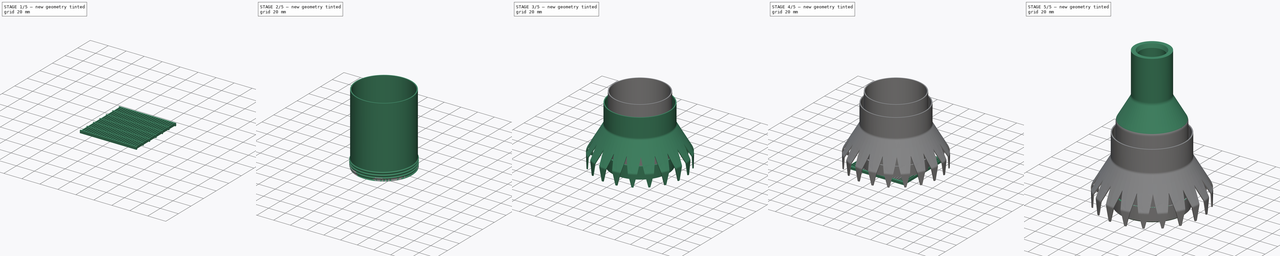
[diagram: build sequence overview — one tinted view per stage of 5, left to right]
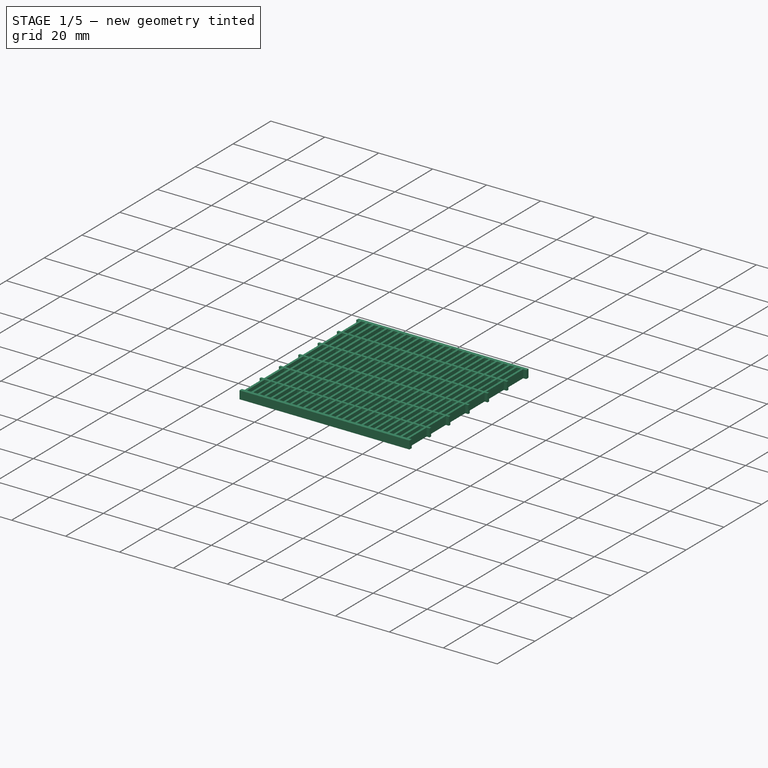
[diagram: stage 1 of 5 — iso view after this stage's code; geometry added in this stage tinted green]
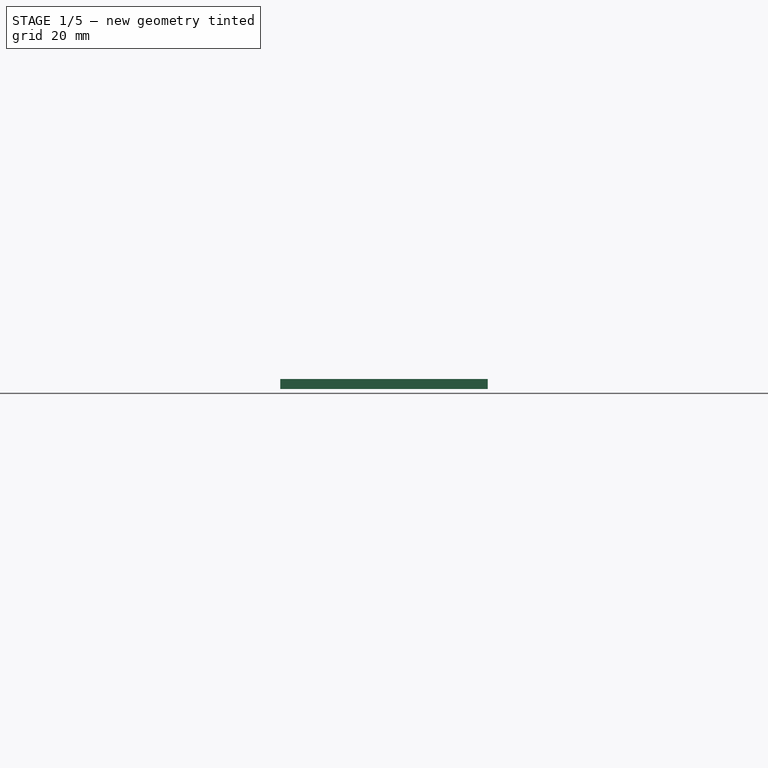
[diagram: stage 1 of 5 — front view after this stage's code; geometry added in this stage tinted green]
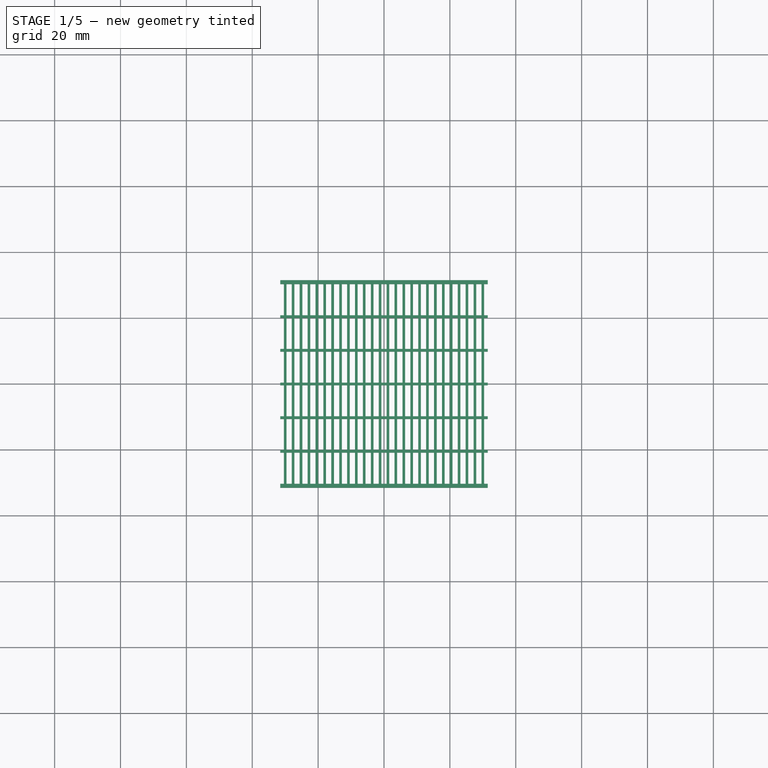
[diagram: stage 1 of 5 — top view after this stage's code; geometry added in this stage tinted green]
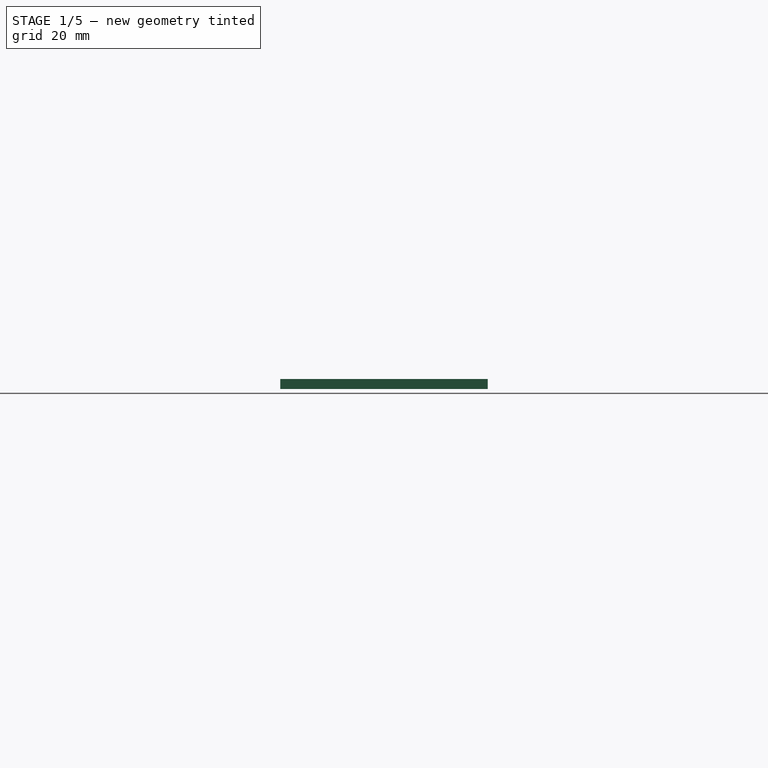
[diagram: stage 1 of 5 — right view after this stage's code; geometry added in this stage tinted green]
FCSTD DOCUMENT  (FreeCAD 1.0R39319 (Git))
Label: SilicaHeater
License: All rights reserved
LicenseURL: http://en.wikipedia.org/wiki/All_rights_reserved
objects: Sketcher::SketchObject×19, PartDesign::Pad×8, PartDesign::LinearPattern×8, PartDesign::Pocket×5, PartDesign::Body×5, PartDesign::Chamfer×4, PartDesign::Revolution×2, PartDesign::Fillet×2, Spreadsheet::Sheet×1, PartDesign::AdditiveHelix×1, PartDesign::SubtractiveHelix×1, Part::MultiFuse×1, PartDesign::SubtractiveLoft×1, PartDesign::PolarPattern×1
note: 134 computed .brp shape members not serialized (recipe doc carries the construction recipe); baked Part::Feature solids carry a one-line shape summary decoded from their .brp

FEATURE [Spreadsheet::Sheet] Spreadsheet
  cells = A1='Global; B2='Tolerance; C2(Tolerance)==0.15 mm; A4='Canister; B5='WallThickness; C5(WallThickness)==1.2 mm; B6='OuterDia; C6(OuterDia)==66.4 mm; D6==50 mm; B7='InnerDia; C7(InnerDia)==OuterDia - WallThickness * 2; B8='CanisterHeight; C8(CanisterHeight)==84 mm; D8==73 mm; A10='Grills; B11='G_Gap; C11(G_Gap)==1.6 mm; B12='G_Thickness; C12(G_Thickness)==0.8 mm; B13='G_Height; C13(G_Height)==3 mm; B14='G_Dividers; C14(G_Dividers)=2; D14=1; A16='Insert; B17='I_Tolerance; C17(I_Tolerance)==0.5 mm; B18='I_OuterDia; C18(I_OuterDia)==InnerDia - I_Tolerance * 2; B19='I_WallThickness; C19(I_WallThickness)==1.2 mm; B20='I_Height; C20(I_Height)==33 mm; A22='Heat Gun; B23='HG_Diameter; C23(HG_Diameter)==25 mm; B24='HG_Tolerance; C24(HG_Tolerance)==0.75 mm; B25='HG_Length; C25(HG_Length)==48 mm; B26='HG_WallThicness; C26(HG_WallThicness)==6 mm; B27='HG_InnerDia; C27(HG_InnerDia)==HG_Diameter + HG_Tolerance * 2; B28='HG_OuterDia; C28(HG_OuterDia)==HG_InnerDia + HG_WallThicness * 2; A30='Cap; B31='C_Height; C31(C_Height)==12 mm; B32='C_InnerDia; C32(C_InnerDia)==OuterDia + Tolerance * 2; B33='C_WallThickness; C33(C_WallThickness)==2.6 mm; B34='C_OuterDia; C34(C_OuterDia)==C_InnerDia + C_WallThickness * 2
FEATURE [Sketcher::SketchObject] Sketch034
  ArcFitTolerance = 1e-06
  AttachmentSupport = -> [XY_Plane]
  FullyConstrained = true
  MakeInternals = false
  MapMode = 5
  expr: Constraints[10] = <<Spreadsheet>>.I_OuterDia
  sketch-geometry (4):
    g0: LineSegment StartX=-31.5 StartY=31.5 StartZ=0 EndX=-31.5 EndY=-31.5 EndZ=0
    g1: LineSegment StartX=-31.5 StartY=-31.5 StartZ=0 EndX=31.5 EndY=-31.5 EndZ=0
    g2: LineSegment StartX=31.5 StartY=-31.5 StartZ=0 EndX=31.5 EndY=31.5 EndZ=0
    g3: LineSegment StartX=31.5 StartY=31.5 StartZ=0 EndX=-31.5 EndY=31.5 EndZ=0
  constraints (11):
    c: Coincident(g0,g1)
    c: Coincident(g1,g2)
    c: Coincident(g2,g3)
    c: Coincident(g3,g0)
    c: Vertical(g0)
    c: Vertical(g2)
    c: Horizontal(g1)
    c: Horizontal(g3)
    c: Symmetric(g0,g1,g-1)
    c: Equal(g3,g0)
    c: DistanceX(g3,g3) = 63
FEATURE [PartDesign::Pad] Pad008
  Direction = (0,0,1)
  Length = 3
  Length2 = 10
  Profile = -> Sketch034
  ReferenceAxis = -> Sketch034 [N_Axis]
  Refine = true
  Suppressed = false
  Type = 0
  expr: Length = <<Spreadsheet>>.G_Height
FEATURE [Sketcher::SketchObject] Sketch035
  ArcFitTolerance = 1e-06
  AttachmentSupport = -> [XY_Plane]
  FullyConstrained = true
  MakeInternals = false
  MapMode = 5
  expr: Constraints[10] = <<Spreadsheet>>.G_Gap
  expr: Constraints[9] = <<Spreadsheet>>.I_OuterDia - <<Spreadsheet>>.I_WallThickness * 2
  sketch-geometry (4):
    g0: LineSegment StartX=-0.8 StartY=30.3 StartZ=0 EndX=-0.8 EndY=-30.3 EndZ=0
    g1: LineSegment StartX=-0.8 StartY=-30.3 StartZ=0 EndX=0.8 EndY=-30.3 EndZ=0
    g2: LineSegment StartX=0.8 StartY=-30.3 StartZ=0 EndX=0.8 EndY=30.3 EndZ=0
    g3: LineSegment StartX=0.8 StartY=30.3 StartZ=0 EndX=-0.8 EndY=30.3 EndZ=0
  constraints (11):
    c: Coincident(g0,g1)
    c: Coincident(g1,g2)
    c: Coincident(g2,g3)
    c: Coincident(g3,g0)
    c: Vertical(g0)
    c: Vertical(g2)
    c: Horizontal(g1)
    c: Horizontal(g3)
    c: Symmetric(g1,g0,g-1)
    c: DistanceY(g0,g0) = 60.6
    c: DistanceX(g3,g3) = 1.6
FEATURE [PartDesign::Pocket] Pocket002
  BaseFeature = -> Pad008
  Direction = (0,0,-1)
  Length = 5
  Length2 = 5
  Profile = -> Sketch035
  ReferenceAxis = -> Sketch035 [N_Axis]
  Refine = true
  Reversed = true
  Suppressed = false
  Type = 1
FEATURE [PartDesign::LinearPattern] LinearPattern
  BaseFeature = -> Pocket002
  Direction = -> Sketch035 [H_Axis]
  Length = 31.2
  Mode = 1
  Occurrences = 14
  Offset = 2.4
  Originals = -> [Pocket002]
  Refine = true
  Suppressed = false
  TransformMode = 0
  expr: Occurrences = <<Spreadsheet>>.I_OuterDia / 2 / Offset + 1
  expr: Offset = <<Spreadsheet>>.G_Gap + <<Spreadsheet>>.G_Thickness
FEATURE [PartDesign::LinearPattern] LinearPattern001
  BaseFeature = -> LinearPattern
  Direction = -> Sketch035 [H_Axis]
  Length = 31.2
  Mode = 1
  Occurrences = 14
  Offset = 2.4
  Originals = -> [Pocket002]
  Refine = true
  Reversed = true
  Suppressed = false
  TransformMode = 0
  expr: Occurrences = <<Spreadsheet>>.I_OuterDia / 2 / Offset + 1
  expr: Offset = <<Spreadsheet>>.G_Gap + <<Spreadsheet>>.G_Thickness
FEATURE [Sketcher::SketchObject] Sketch036
  ArcFitTolerance = 1e-06
  AttachmentSupport = -> [XY_Plane]
  FullyConstrained = true
  MakeInternals = false
  MapMode = 5
  expr: Constraints[10] = <<Spreadsheet>>.I_OuterDia
  expr: Constraints[9] = <<Spreadsheet>>.G_Thickness
  sketch-geometry (4):
    g0: LineSegment StartX=-31.5 StartY=0.4 StartZ=0 EndX=-31.5 EndY=-0.4 EndZ=0
    g1: LineSegment StartX=-31.5 StartY=-0.4 StartZ=0 EndX=31.5 EndY=-0.4 EndZ=0
    g2: LineSegment StartX=31.5 StartY=-0.4 StartZ=0 EndX=31.5 EndY=0.4 EndZ=0
    g3: LineSegment StartX=31.5 StartY=0.4 StartZ=0 EndX=-31.5 EndY=0.4 EndZ=0
  constraints (11):
    c: Coincident(g0,g1)
    c: Coincident(g1,g2)
    c: Coincident(g2,g3)
    c: Coincident(g3,g0)
    c: Vertical(g0)
    c: Vertical(g2)
    c: Horizontal(g1)
    c: Horizontal(g3)
    c: Symmetric(g0,g2,g-1)
    c: DistanceY(g0,g0) = 0.8
    c: DistanceX(g3,g3) = 63
FEATURE [PartDesign::Pad] Pad009
  BaseFeature = -> LinearPattern001
  Direction = (0,0,1)
  Length = 3
  Length2 = 10
  Profile = -> Sketch036
  ReferenceAxis = -> Sketch036 [N_Axis]
  Refine = true
  Suppressed = false
  Type = 0
  expr: Length = <<Pad008>>.Length
FEATURE [PartDesign::LinearPattern] LinearPattern002
  BaseFeature = -> Pad009
  Direction = -> Sketch036 [V_Axis]
  Length = 20.4667
  Mode = 1
  Occurrences = 3
  Offset = 10.2333
  Originals = -> [Pad009]
  Refine = true
  Suppressed = false
  TransformMode = 0
  expr: Occurrences = <<Spreadsheet>>.G_Dividers + 1
  expr: Offset = (<<Spreadsheet>>.I_OuterDia - <<Spreadsheet>>.I_WallThickness - <<Spreadsheet>>.G_Thickness / 2) / 2 / (<<Spreadsheet>>.G_Dividers + 1)
FEATURE [PartDesign::LinearPattern] LinearPattern003
  BaseFeature = -> LinearPattern002
  Direction = -> Sketch036 [V_Axis]
  Length = 20.4667
  Mode = 1
  Occurrences = 3
  Offset = 10.2333
  Originals = -> [Pad009]
  Refine = true
  Reversed = true
  Suppressed = false
  TransformMode = 0
  expr: Occurrences = <<Spreadsheet>>.G_Dividers + 1
  expr: Offset = (<<Spreadsheet>>.I_OuterDia - <<Spreadsheet>>.I_WallThickness - <<Spreadsheet>>.G_Thickness / 2) / 2 / (<<Spreadsheet>>.G_Dividers + 1)
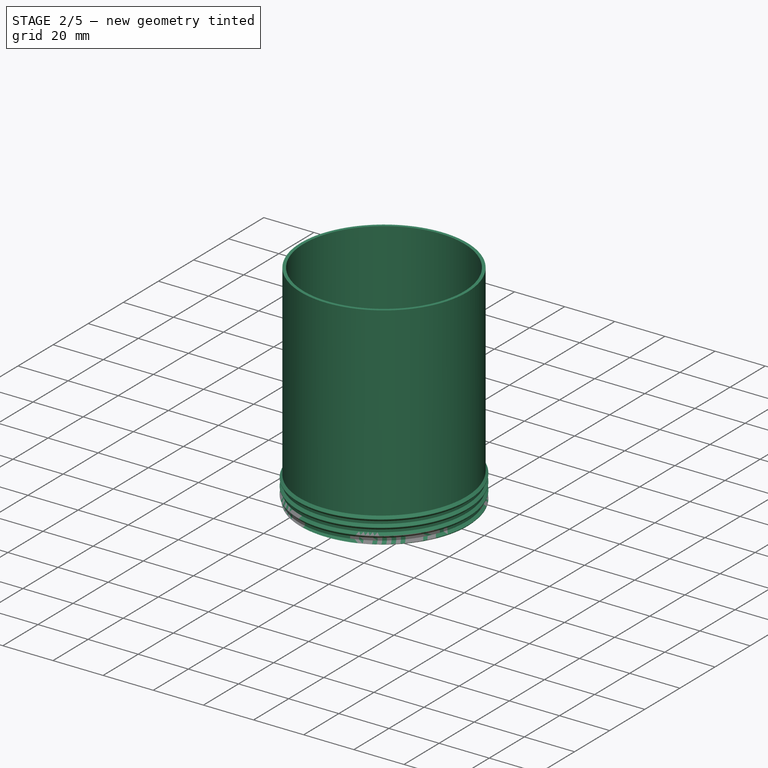
[diagram: stage 2 of 5 — iso view after this stage's code; geometry added in this stage tinted green]
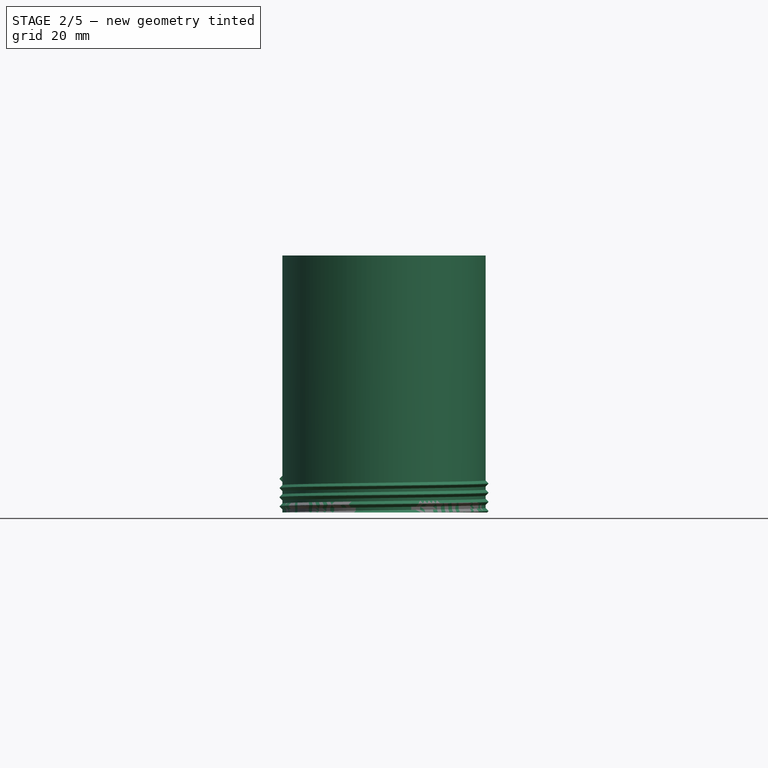
[diagram: stage 2 of 5 — front view after this stage's code; geometry added in this stage tinted green]
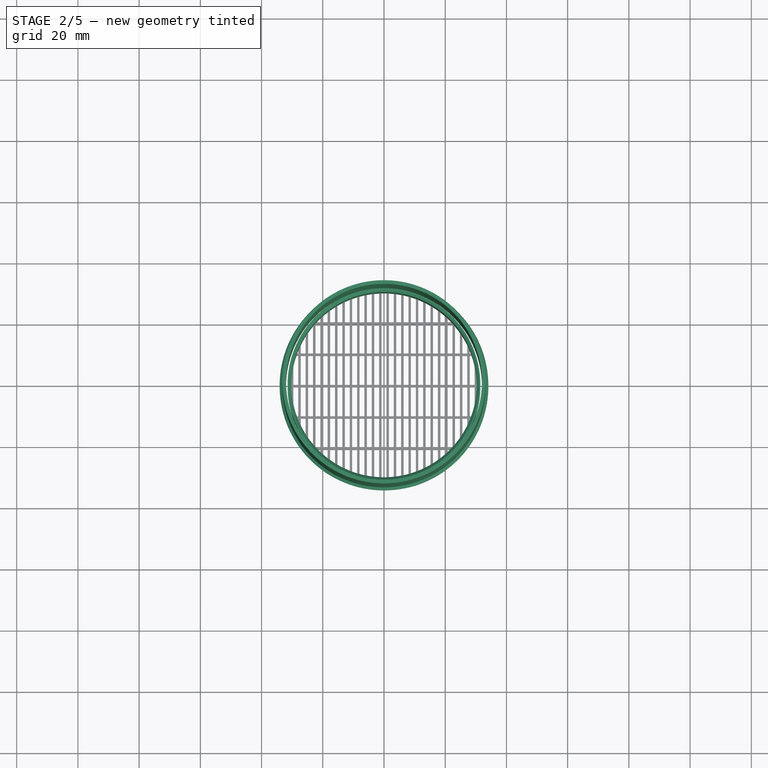
[diagram: stage 2 of 5 — top view after this stage's code; geometry added in this stage tinted green]
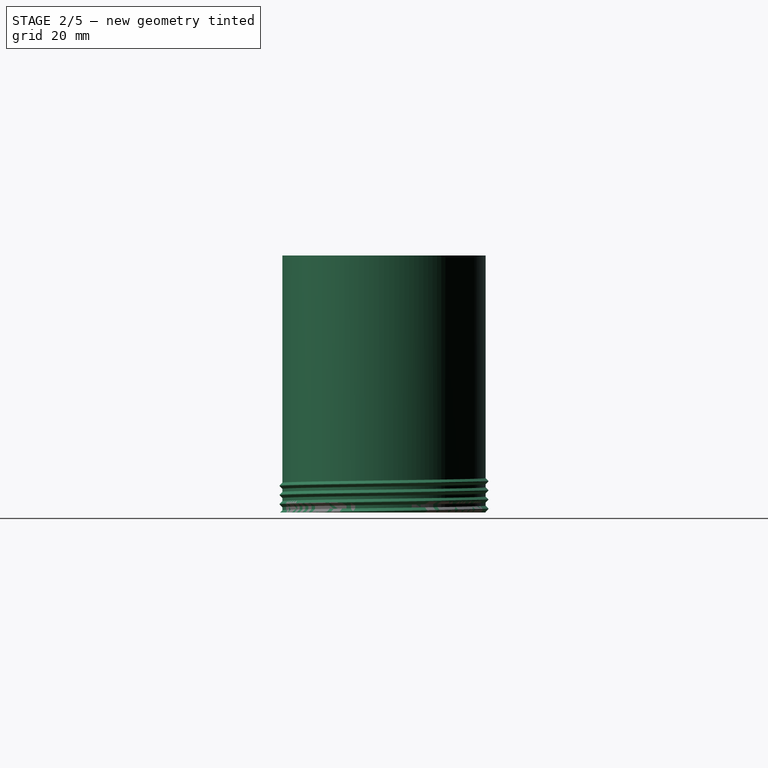
[diagram: stage 2 of 5 — right view after this stage's code; geometry added in this stage tinted green]
FEATURE [Sketcher::SketchObject] Sketch037
  ArcFitTolerance = 1e-06
  AttachmentSupport = -> [XY_Plane]
  FullyConstrained = true
  MakeInternals = false
  MapMode = 5
  expr: Constraints[11] = <<Spreadsheet>>.I_OuterDia
  expr: Constraints[9] = <<Spreadsheet>>.I_OuterDia + 1 mm
  sketch-geometry (5):
    g0: LineSegment StartX=-32 StartY=32 StartZ=0 EndX=-32 EndY=-32 EndZ=0
    g1: LineSegment StartX=-32 StartY=-32 StartZ=0 EndX=32 EndY=-32 EndZ=0
    g2: LineSegment StartX=32 StartY=-32 StartZ=0 EndX=32 EndY=32 EndZ=0
    g3: LineSegment StartX=32 StartY=32 StartZ=0 EndX=-32 EndY=32 EndZ=0
    g4: Circle CenterX=0 CenterY=0 CenterZ=0 NormalX=0 NormalY=0 NormalZ=1 AngleXU=0 Radius=31.5
  constraints (13):
    c: Coincident(g0,g1)
    c: Coincident(g1,g2)
    c: Coincident(g2,g3)
    c: Coincident(g3,g0)
    c: Vertical(g0)
    c: Vertical(g2)
    c: Horizontal(g1)
    c: Horizontal(g3)
    c: Equal(g3,g0)
    c: DistanceX(g3,g3) = 64
    c: Symmetric(g0,g2,g-1)
    c: Diameter(g4) = 63
    c: Coincident(g4,g-1)
FEATURE [PartDesign::Pocket] Pocket003
  BaseFeature = -> LinearPattern003
  Direction = (0,0,-1)
  Length = 5
  Length2 = 5
  Profile = -> Sketch037
  ReferenceAxis = -> Sketch037 [N_Axis]
  Refine = true
  Reversed = true
  Suppressed = false
  Type = 1
FEATURE [Sketcher::SketchObject] Sketch038
  ArcFitTolerance = 1e-06
  AttachmentSupport = -> [XY_Plane]
  FullyConstrained = true
  MakeInternals = false
  MapMode = 5
  expr: Constraints[1] = <<Spreadsheet>>.I_OuterDia
  expr: Constraints[2] = <<Spreadsheet>>.I_OuterDia - <<Spreadsheet>>.I_WallThickness * 2
  sketch-geometry (2):
    g0: Circle CenterX=0 CenterY=0 CenterZ=0 NormalX=0 NormalY=0 NormalZ=1 AngleXU=0 Radius=31.5
    g1: Circle CenterX=0 CenterY=0 CenterZ=0 NormalX=0 NormalY=0 NormalZ=1 AngleXU=0 Radius=30.3
  constraints (4):
    c: Coincident(g1,g0)
    c: Diameter(g0) = 63
    c: Diameter(g1) = 60.6
    c: Coincident(g0,g-1)
FEATURE [PartDesign::Pad] Pad010
  BaseFeature = -> Pocket003
  Direction = (0,0,1)
  Length = 33
  Length2 = 10
  Profile = -> Sketch038
  ReferenceAxis = -> Sketch038 [N_Axis]
  Refine = true
  Suppressed = false
  Type = 0
  expr: Length = <<Spreadsheet>>.I_Height
FEATURE [PartDesign::Chamfer] Chamfer005
  Angle = 45
  Base = -> Pad010 [Edge232]
  BaseFeature = -> Pad010
  ChamferType = 0
  FlipDirection = false
  Refine = true
  Size = 0.8
  Size2 = 1
  SupportTransform = false
  Suppressed = false
  UseAllEdges = false
  expr: Size = <<Spreadsheet>>.I_WallThickness - 0.4 mm
FEATURE [Sketcher::SketchObject] Sketch041
  ArcFitTolerance = 1e-06
  AttachmentSupport = -> [XY_Plane011]
  FullyConstrained = true
  MakeInternals = false
  MapMode = 5
  expr: Constraints[2] = <<Spreadsheet>>.InnerDia
  expr: Constraints[3] = Spreadsheet.OuterDia
  sketch-geometry (2):
    g0: Circle CenterX=0 CenterY=0 CenterZ=0 NormalX=0 NormalY=0 NormalZ=1 AngleXU=0 Radius=33.2
    g1: Circle CenterX=0 CenterY=0 CenterZ=0 NormalX=0 NormalY=0 NormalZ=1 AngleXU=0 Radius=32
  constraints (4):
    c: Coincident(g0,g-1)
    c: Coincident(g1,g0)
    c: Diameter(g1) = 64
    c: Diameter(g0) = 66.4
FEATURE [PartDesign::Pad] Pad011
  Direction = (0,0,1)
  Length = 84
  Length2 = 10
  Profile = -> Sketch041
  ReferenceAxis = -> Sketch041 [N_Axis]
  Refine = true
  Suppressed = false
  Type = 0
  expr: Length = <<Spreadsheet>>.CanisterHeight
FEATURE [Sketcher::SketchObject] Sketch042
  ArcFitTolerance = 1e-06
  AttachmentSupport = -> [XZ_Plane011]
  FullyConstrained = true
  MakeInternals = false
  MapMode = 5
  Placement = pos=(0,0,0) rot=(1,0,0;1.5708rad)
  expr: Constraints[10] = <<Spreadsheet>>.WallThickness
  expr: Constraints[13] = <<Spreadsheet>>.InnerDia / 2
  expr: Constraints[15] = <<Pad011>>.Length
  expr: Constraints[24] = <<Spreadsheet>>.HG_Length
  expr: Constraints[28] = <<Spreadsheet>>.HG_InnerDia / 2
  expr: Constraints[29] = <<Spreadsheet>>.HG_WallThicness
  sketch-geometry (10):
    g0: LineSegment StartX=-33.2 StartY=84 StartZ=0 EndX=-32 EndY=84 EndZ=0
    g1: LineSegment StartX=-33.2 StartY=84 StartZ=0 EndX=-19.25 EndY=108.162 EndZ=0
    g2: LineSegment StartX=-19.25 StartY=108.162 StartZ=0 EndX=-19.25 EndY=153.948 EndZ=0
    g3: LineSegment StartX=-19.25 StartY=153.948 StartZ=0 EndX=-13.25 EndY=153.948 EndZ=0
    g4: LineSegment StartX=-13.25 StartY=153.948 StartZ=0 EndX=-13.25 EndY=105.948 EndZ=0
    g5: LineSegment StartX=-13.25 StartY=105.948 StartZ=0 EndX=-32 EndY=84 EndZ=0
    g6: LineSegment [constr] StartX=-32 StartY=84 StartZ=0 EndX=0 EndY=84 EndZ=0
    g7: LineSegment [constr] StartX=-19.25 StartY=108.162 StartZ=0 EndX=-13.25 EndY=108.162 EndZ=0
    g8: LineSegment [constr] StartX=-19.25 StartY=108.162 StartZ=0 EndX=-14.688 EndY=104.265 EndZ=0
    g9: LineSegment [constr] StartX=-13.25 StartY=153.948 StartZ=0 EndX=0 EndY=153.948 EndZ=0
  constraints (30):
    c: Horizontal(g0)
    c: Coincident(g0,g1)
    c: Coincident(g1,g2)
    c: Vertical(g2)
    c: Coincident(g2,g3)
    c: Horizontal(g3)
    c: Coincident(g3,g4)
    c: Vertical(g4)
    c: Coincident(g4,g5)
    c: Coincident(g5,g0)
    c: DistanceX(g0,g0) = 1.2
    c: Coincident(g6,g0)
    c: Horizontal(g6)
    c: DistanceX(g6,g6) = 32
    c: PointOnObject(g6,g-2)
    c: DistanceY(g-1,g6) = 84
    c: Coincident(g7,g1)
    c: PointOnObject(g7,g4)
    c: Horizontal(g7)
    c: Coincident(g8,g1)
    c: PointOnObject(g8,g5)
    c: Perpendicular(g5,g8)
    c: Equal(g8,g7)
    c: Angle(g7,g1) = 1.0472
    c: DistanceY(g4,g3) = 48
    c: Coincident(g9,g3)
    c: PointOnObject(g9,g-2)
    c: Horizontal(g9)
    c: DistanceX(g9,g9) = 13.25
    c: DistanceX(g3,g3) = 6
FEATURE [Sketcher::SketchObject] Sketch043
  ArcFitTolerance = 1e-06
  AttachmentSupport = -> [XZ_Plane011]
  ExternalGeometry = -> [Sketch041]
  FullyConstrained = true
  MakeInternals = false
  MapMode = 5
  Placement = pos=(0,0,0) rot=(1,0,0;1.5708rad)
  sketch-geometry (7):
    g0: LineSegment StartX=-33.1 StartY=-2 StartZ=0 EndX=-33.1 EndY=0 EndZ=0
    g1: LineSegment StartX=-33.1 StartY=0 StartZ=0 EndX=-33.2 EndY=0 EndZ=0
    g2: LineSegment StartX=-33.2 StartY=0 StartZ=0 EndX=-34.1 EndY=-0.9 EndZ=0
    g3: LineSegment StartX=-34.1 StartY=-0.9 StartZ=0 EndX=-34.1 EndY=-1.1 EndZ=0
    g4: LineSegment StartX=-34.1 StartY=-1.1 StartZ=0 EndX=-33.2 EndY=-2 EndZ=0
    g5: LineSegment StartX=-33.2 StartY=-2 StartZ=0 EndX=-33.1 EndY=-2 EndZ=0
    g6: LineSegment [constr] StartX=-33.2 StartY=0 StartZ=0 EndX=-33.2 EndY=-2 EndZ=0
  constraints (20):
    c: Vertical(g0)
    c: Coincident(g0,g1)
    c: Horizontal(g1)
    c: Coincident(g1,g2)
    c: Coincident(g2,g3)
    c: Vertical(g3)
    c: Coincident(g3,g4)
    c: Coincident(g4,g5)
    c: Coincident(g5,g0)
    c: Horizontal(g5)
    c: Equal(g4,g2)
    c: DistanceY(g4,g1) = 2
    c: DistanceX(g1,g1) = 0.1
    c: DistanceY(g3,g3) = 0.2
    c: Perpendicular(g2,g4)
    c: Coincident(g6,g1)
    c: Coincident(g6,g4)
    c: Vertical(g6)
    c: Coincident(g1,g-3)
    c: DistanceX(g2,g2) = 0.9  'ThreadDepth'
FEATURE [PartDesign::AdditiveHelix] AdditiveHelix002
  Angle = 0
  Axis = (0,2e-16,1)
  Base = (0,0,0)
  BaseFeature = -> Pad011
  Growth = 0
  HasBeenEdited = true
  Height = 12
  LeftHanded = false
  Mode = 1
  Outside = false
  Pitch = 3
  Profile = -> Sketch043
  ReferenceAxis = -> Sketch043 [V_Axis]
  Refine = true
  Suppressed = false
  Tolerance = 0.1
  Turns = 4
FEATURE [PartDesign::Body] Body009  label="Stand"
  AllowCompound = false
  Group = -> [Sketch051,Revolution,Sketch052,Sketch053,Fillet,SubtractiveLoft,PolarPattern]
  Origin = -> Origin014
  Tip = -> PolarPattern
FEATURE [Sketcher::SketchObject] Sketch054
  ArcFitTolerance = 1e-06
  AttachmentSupport = -> [XY_Plane011]
  ExternalGeometry = -> [Sketch041]
  FullyConstrained = true
  MakeInternals = false
  MapMode = 5
  expr: Constraints[5] = <<Sketch043>>.Constraints.ThreadDepth + 0.1 mm
  sketch-geometry (2):
    g0: Circle CenterX=0 CenterY=0 CenterZ=0 NormalX=0 NormalY=0 NormalZ=1 AngleXU=0 Radius=34.2
    g1: LineSegment [constr] StartX=-33.2 StartY=0 StartZ=0 EndX=-34.2 EndY=0 EndZ=0
  constraints (6):
    c: Coincident(g0,g-3)
    c: PointOnObject(g1,g-3)
    c: PointOnObject(g1,g0)
    c: Horizontal(g1)
    c: PointOnObject(g-3,g1)
    c: DistanceX(g1,g1) = 1
FEATURE [PartDesign::Pocket] Pocket005
  BaseFeature = -> AdditiveHelix002
  Direction = (0,0,-1)
  Length = 5
  Length2 = 5
  Profile = -> Sketch054
  ReferenceAxis = -> Sketch054 [N_Axis]
  Refine = true
  Suppressed = false
  Type = 1
FEATURE [PartDesign::Body] Body007  label="Canister"
  AllowCompound = false
  Group = -> [Sketch041,Pad011,Sketch043,AdditiveHelix002,Sketch042,Sketch054,Pocket005,Revolution001,Chamfer007,Fillet005]
  Origin = -> Origin011
  Tip = -> Fillet005
FEATURE [PartDesign::Chamfer] Chamfer008
  Angle = 45
  Base = -> Chamfer005 [Edge810]
  BaseFeature = -> Chamfer005
  ChamferType = 1
  FlipDirection = false
  Refine = true
  Size = 0.6
  Size2 = 1.5
  SupportTransform = false
  Suppressed = false
  UseAllEdges = false
  expr: Size = <<Spreadsheet>>.I_WallThickness - 0.6 mm
  expr: Size2 = <<Pad008>>.Length / 2
FEATURE [PartDesign::Body] Body005  label="Insert"
  AllowCompound = false
  Group = -> [Sketch034,Pad008,Sketch035,Pocket002,LinearPattern,LinearPattern001,Sketch036,Pad009,LinearPattern002,LinearPattern003,Sketch037,Pocket003,Sketch038,Pad010,Chamfer005,Chamfer008]
  Origin = -> Origin
  Tip = -> Chamfer008
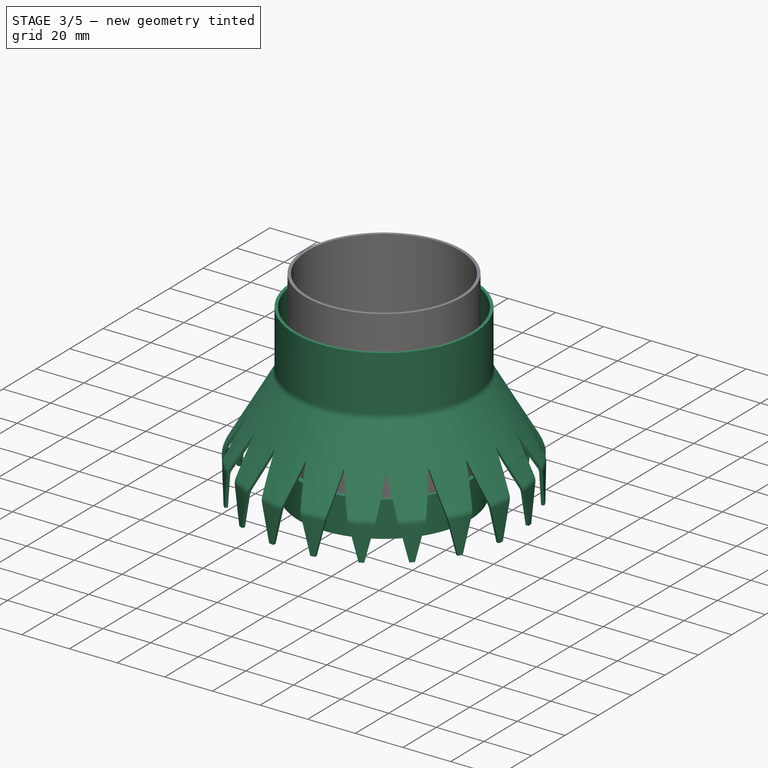
[diagram: stage 3 of 5 — iso view after this stage's code; geometry added in this stage tinted green]
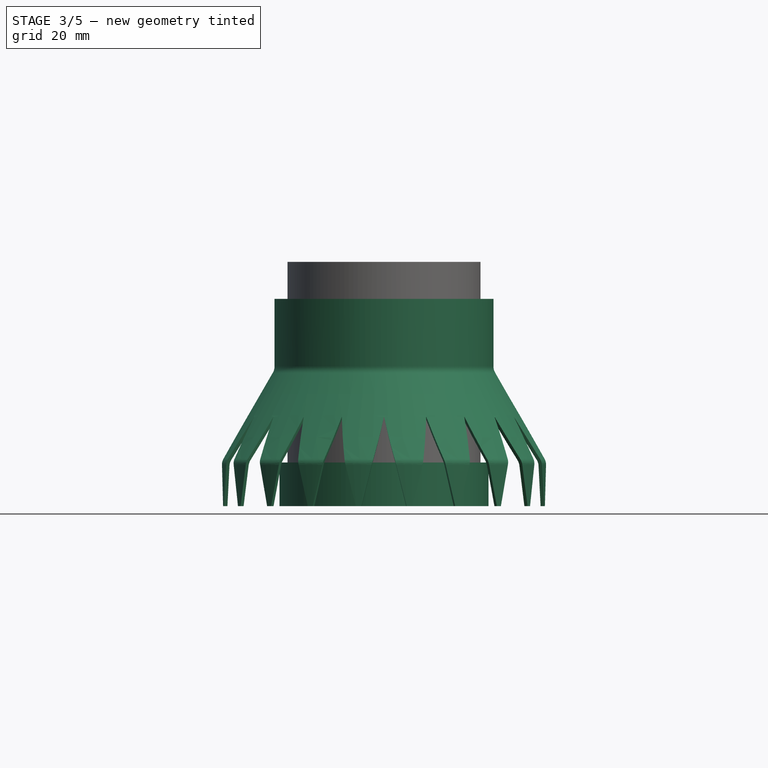
[diagram: stage 3 of 5 — front view after this stage's code; geometry added in this stage tinted green]
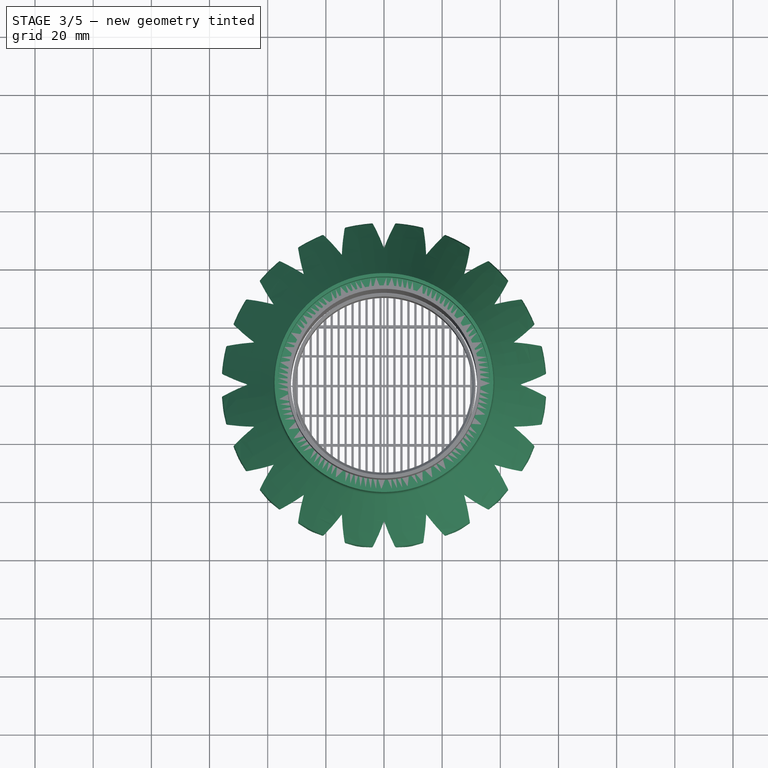
[diagram: stage 3 of 5 — top view after this stage's code; geometry added in this stage tinted green]
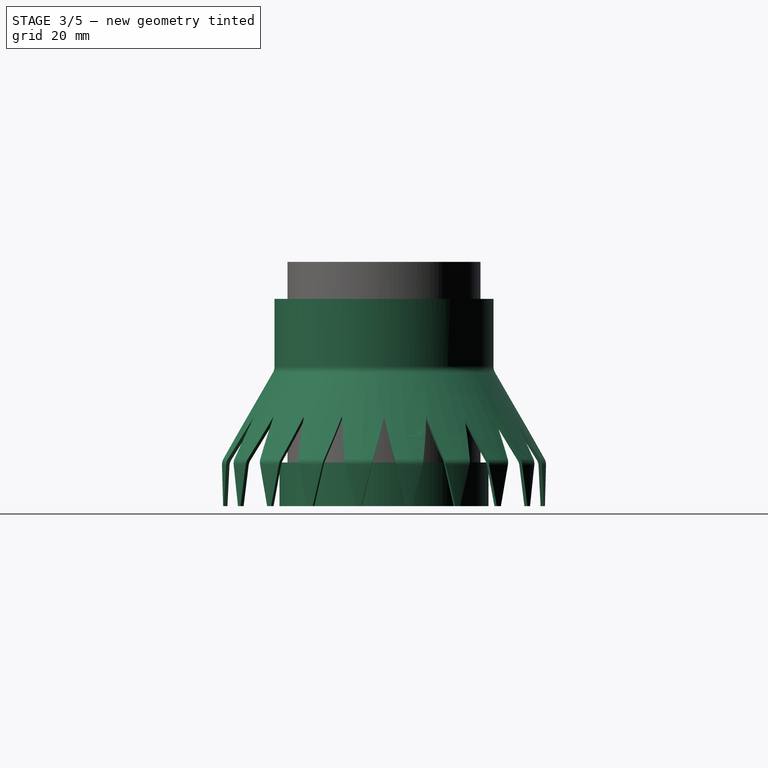
[diagram: stage 3 of 5 — right view after this stage's code; geometry added in this stage tinted green]
FEATURE [PartDesign::Body] Body  label="CapGrill"
  AllowCompound = false
  Group = -> [Sketch,Pad,Sketch044,Pocket,LinearPattern004,LinearPattern005,Sketch045,Pad012,LinearPattern006,LinearPattern007,Sketch046,Pocket004]
  Origin = -> Origin012
  Tip = -> Pocket004
FEATURE [Sketcher::SketchObject] Sketch048
  ArcFitTolerance = 1e-06
  AttachmentSupport = -> [XY_Plane013]
  FullyConstrained = true
  MakeInternals = false
  MapMode = 5
  expr: Constraints[2] = <<Spreadsheet>>.C_InnerDia
  expr: Constraints[3] = <<Spreadsheet>>.C_OuterDia
  sketch-geometry (2):
    g0: Circle CenterX=0 CenterY=0 CenterZ=0 NormalX=0 NormalY=0 NormalZ=1 AngleXU=0 Radius=35.95
    g1: Circle CenterX=0 CenterY=0 CenterZ=0 NormalX=0 NormalY=0 NormalZ=1 AngleXU=0 Radius=33.35
  constraints (4):
    c: Coincident(g0,g-1)
    c: Coincident(g1,g0)
    c: Diameter(g1) = 66.7
    c: Diameter(g0) = 71.9
FEATURE [PartDesign::Pad] Pad014
  Direction = (0,0,1)
  Length = 15
  Length2 = 10
  Profile = -> Sketch048
  ReferenceAxis = -> Sketch048 [N_Axis]
  Refine = true
  Suppressed = false
  Type = 0
  expr: Length = <<Spreadsheet>>.C_Height + <<AdditiveHelix002>>.Pitch
FEATURE [Sketcher::SketchObject] Sketch049
  ArcFitTolerance = 1e-06
  AttachmentSupport = -> [XZ_Plane013]
  ExternalGeometry = -> [Sketch048]
  FullyConstrained = true
  MakeInternals = false
  MapMode = 5
  Placement = pos=(0,0,0) rot=(1,0,0;1.5708rad)
  expr: Constraints[8] = <<AdditiveHelix002>>.Pitch - 0.4 mm
  sketch-geometry (6):
    g0: LineSegment StartX=-33.35 StartY=0 StartZ=0 EndX=-33.25 EndY=0 EndZ=0
    g1: LineSegment StartX=-33.25 StartY=0 StartZ=0 EndX=-33.25 EndY=-2.6 EndZ=0
    g2: LineSegment StartX=-33.25 StartY=-2.6 StartZ=0 EndX=-33.35 EndY=-2.6 EndZ=0
    g3: LineSegment StartX=-33.35 StartY=-2.6 StartZ=0 EndX=-34.65 EndY=-1.3 EndZ=0
    g4: LineSegment StartX=-34.65 StartY=-1.3 StartZ=0 EndX=-33.35 EndY=0 EndZ=0
    g5: LineSegment [constr] StartX=-33.35 StartY=0 StartZ=0 EndX=-33.35 EndY=-2.6 EndZ=0
  constraints (16):
    c: Horizontal(g0)
    c: Coincident(g0,g1)
    c: Vertical(g1)
    c: Coincident(g1,g2)
    c: Horizontal(g2)
    c: Coincident(g2,g3)
    c: Coincident(g3,g4)
    c: Coincident(g4,g0)
    c: DistanceY(g1,g1) = 2.6
    c: Equal(g4,g3)
    c: Perpendicular(g3,g4)
    c: Coincident(g0,g-3)
    c: DistanceX(g0,g0) = 0.1
    c: Coincident(g5,g0)
    c: Coincident(g5,g2)
    c: Vertical(g5)
FEATURE [PartDesign::SubtractiveHelix] SubtractiveHelix
  Angle = 0
  Axis = (0,2e-16,1)
  Base = (0,0,0)
  BaseFeature = -> Pad014
  Growth = 0
  HasBeenEdited = true
  Height = 18
  LeftHanded = false
  Mode = 0
  Outside = false
  Pitch = 3
  Profile = -> Sketch049
  ReferenceAxis = -> Sketch049 [V_Axis]
  Refine = true
  Suppressed = false
  Tolerance = 0.1
  Turns = 6
  expr: Height = <<Pad014>>.Length + Pitch
  expr: Pitch = <<AdditiveHelix002>>.Pitch
FEATURE [Sketcher::SketchObject] Sketch051
  ArcFitTolerance = 1e-06
  AttachmentSupport = -> [XZ_Plane014]
  FullyConstrained = true
  MakeInternals = false
  MapMode = 5
  Placement = pos=(0,0,0) rot=(1,0,0;1.5708rad)
  expr: .Constraints.R = <<Spreadsheet>>.C_OuterDia / 2 + <<Spreadsheet>>.I_Tolerance
  expr: Constraints[18] = <<Spreadsheet>>.WallThickness
  expr: Constraints[23] = <<Spreadsheet>>.InnerDia / 2
  expr: Constraints[24] = <<Spreadsheet>>.C_Height + <<Spreadsheet>>.G_Height
  expr: Constraints[31] = .Constraints.R / 2
  sketch-geometry (15):
    g0: LineSegment StartX=-32 StartY=56.2743 StartZ=0 EndX=-36.45 EndY=56.2743 EndZ=0
    g1: LineSegment StartX=-36.45 StartY=56.2743 StartZ=0 EndX=-36.45 EndY=71.2743 EndZ=0
    g2: LineSegment StartX=-36.45 StartY=71.2743 StartZ=0 EndX=-37.65 EndY=71.2743 EndZ=0
    g3: LineSegment StartX=-37.65 StartY=71.2743 StartZ=0 EndX=-37.65 EndY=46.8882 EndZ=0
    g4: LineSegment StartX=-37.65 StartY=46.8882 StartZ=0 EndX=-55.875 EndY=15.3215 EndZ=0
    g5: LineSegment StartX=-55.875 StartY=15.3215 StartZ=0 EndX=-55.875 EndY=0 EndZ=0
    g6: LineSegment StartX=-55.875 StartY=0 StartZ=0 EndX=-54.675 EndY=0 EndZ=0
    g7: LineSegment StartX=-54.675 StartY=0 StartZ=0 EndX=-54.675 EndY=15 EndZ=0
    g8: LineSegment StartX=-54.675 StartY=15 StartZ=0 EndX=-32 EndY=54.2743 EndZ=0
    g9: LineSegment StartX=-32 StartY=54.2743 StartZ=0 EndX=-32 EndY=56.2743 EndZ=0
    g10: LineSegment [constr] StartX=-32 StartY=54.2743 StartZ=0 EndX=0 EndY=54.2743 EndZ=0
    g11: LineSegment [constr] StartX=-36.45 StartY=71.2743 StartZ=0 EndX=0 EndY=71.2743 EndZ=0
    g12: LineSegment [constr] StartX=-54.675 StartY=15 StartZ=0 EndX=-55.7142 EndY=15.6 EndZ=0
    g13: LineSegment [constr] StartX=-37.65 StartY=46.8882 StartZ=0 EndX=-36.6108 EndY=46.2882 EndZ=0
    g14: GeomPoint [constr] X=-45.6429 Y=30.6441 Z=0
  constraints (44):
    c: Horizontal(g0)
    c: Coincident(g0,g1)
    c: Vertical(g1)
    c: Coincident(g1,g2)
    c: Coincident(g2,g3)
    c: Vertical(g3)
    c: Coincident(g3,g4)
    c: Coincident(g4,g5)
    c: Vertical(g5)
    c: Coincident(g5,g6)
    c: Horizontal(g6)
    c: Coincident(g6,g7)
    c: Vertical(g7)
    c: Coincident(g7,g8)
    c: Coincident(g9,g0)
    c: Vertical(g9)
    c: Horizontal(g2)
    c: Equal(g2,g6)
    c: DistanceX(g2,g2) = 1.2
    c: DistanceY(g9,g9) = 2
    c: PointOnObject(g6,g-1)
    c: PointOnObject(g10,g-2)
    c: Horizontal(g10)
    c: DistanceX(g10,g10) = 32
    c: DistanceY(g0,g2) = 15
    c: Coincident(g11,g1)
    c: PointOnObject(g11,g-2)
    c: Horizontal(g11)
    c: DistanceX(g11,g11) = 36.45  'R'
    c: Coincident(g8,g9)
    c: Angle(g0,g8) = 1.0472
    c: DistanceX(g4,g3) = 18.225
    c: Coincident(g10,g8)
    c: Coincident(g12,g7)
    c: PointOnObject(g12,g4)
    c: Perpendicular(g4,g12)
    c: Equal(g12,g6)
    c: Coincident(g13,g3)
    c: PointOnObject(g13,g8)
    c: Perpendicular(g8,g13)
    c: Equal(g12,g13)
    c: DistanceY(g6,g7) = 15
    c: Symmetric(g7,g13,g14)
    c: DistanceY(g6,g14) = 30.6441  'VentHeight'
FEATURE [PartDesign::Revolution] Revolution
  Angle = 360
  Angle2 = 60
  Axis = (0,2e-16,1)
  Base = (0,0,0)
  Placement = pos=(0,0,0) rot=(1,0,0;1.5708rad)
  Profile = -> Sketch051
  ReferenceAxis = -> Sketch051 [V_Axis]
  Refine = true
  Suppressed = false
  Type = 0
FEATURE [Sketcher::SketchObject] Sketch052
  ArcFitTolerance = 1e-06
  AttachmentSupport = -> [XY_Plane014]
  ExternalGeometry = -> [Sketch051]
  FullyConstrained = true
  MakeInternals = false
  MapMode = 5
  expr: Constraints[5] = 360 ° / 20 - 2 °
  sketch-geometry (5):
    g0: ArcOfCircle CenterX=0 CenterY=0 CenterZ=0 NormalX=0 NormalY=0 NormalZ=1 AngleXU=0 Radius=56.875 StartAngle=3.00197 EndAngle=3.28122
    g1: LineSegment StartX=-56.3215 StartY=7.91547 StartZ=0 EndX=0 EndY=0 EndZ=0
    g2: LineSegment StartX=-56.3215 StartY=-7.91547 StartZ=0 EndX=0 EndY=0 EndZ=0
    g3: LineSegment [constr] StartX=-55.875 StartY=0 StartZ=0 EndX=-56.875 EndY=0 EndZ=0
    g4: LineSegment [constr] StartX=-56.3215 StartY=7.91547 StartZ=0 EndX=-56.3215 EndY=-7.91547 EndZ=0
  constraints (14):
    c: Coincident(g1,g0)
    c: Coincident(g2,g0)
    c: PointOnObject(g0,g2)
    c: PointOnObject(g0,g1)
    c: Coincident(g0,g-1)
    c: Angle(g1,g2) = 0.279253
    c: Coincident(g3,g-3)
    c: PointOnObject(g3,g0)
    c: Horizontal(g3)
    c: DistanceX(g3,g3) = 1
    c: Coincident(g2,g1)
    c: Coincident(g4,g0)
    c: Coincident(g4,g0)
    c: Vertical(g4)
FEATURE [Sketcher::SketchObject] Sketch053
  ArcFitTolerance = 1e-06
  AttachmentOffset = pos=(0,0,30.6441) rot=(0,0,1;0rad)
  AttachmentSupport = -> [XY_Plane014]
  ExternalGeometry = -> [Sketch051]
  FullyConstrained = true
  MakeInternals = false
  MapMode = 5
  Placement = pos=(0,0,30.6441) rot=(0,0,1;0rad)
  expr: .AttachmentOffset.Base.z = <<Sketch051>>.Constraints.VentHeight
  expr: Constraints[5] = 0.1 °
  sketch-geometry (5):
    g0: ArcOfCircle CenterX=0 CenterY=0 CenterZ=0 NormalX=0 NormalY=0 NormalZ=1 AngleXU=0 Radius=56.875 StartAngle=3.14072 EndAngle=3.14247
    g1: LineSegment StartX=-56.875 StartY=0.0496328 StartZ=0 EndX=0 EndY=0 EndZ=0
    g2: LineSegment StartX=-56.875 StartY=-0.0496328 StartZ=0 EndX=0 EndY=0 EndZ=0
    g3: LineSegment [constr] StartX=-55.875 StartY=0 StartZ=0 EndX=-56.875 EndY=0 EndZ=0
    g4: LineSegment [constr] StartX=-56.875 StartY=0.0496328 StartZ=0 EndX=-56.875 EndY=-0.0496328 EndZ=0
  constraints (14):
    c: Coincident(g1,g0)
    c: Coincident(g2,g0)
    c: PointOnObject(g0,g2)
    c: PointOnObject(g0,g1)
    c: Coincident(g0,g-1)
    c: Angle(g1,g2) = 0.00174533
    c: Coincident(g3,g-3)
    c: PointOnObject(g3,g0)
    c: Horizontal(g3)
    c: DistanceX(g3,g3) = 1
    c: Coincident(g1,g2)
    c: Coincident(g4,g0)
    c: Vertical(g4)
    c: Coincident(g4,g0)
FEATURE [PartDesign::Fillet] Fillet
  Base = -> Revolution [Edge8,Edge6,Edge13]
  BaseFeature = -> Revolution
  Placement = pos=(0,0,0) rot=(1,0,0;1.5708rad)
  Radius = 4
  Refine = true
  SupportTransform = false
  Suppressed = false
  UseAllEdges = false
FEATURE [PartDesign::SubtractiveLoft] SubtractiveLoft
  BaseFeature = -> Fillet
  Closed = false
  Placement = pos=(0,0,0) rot=(1,0,0;1.5708rad)
  Profile = -> Sketch052
  Refine = true
  Ruled = false
  Sections = -> [Sketch053]
  Suppressed = false
FEATURE [PartDesign::PolarPattern] PolarPattern
  Angle = 360
  Axis = -> Sketch052 [N_Axis]
  BaseFeature = -> SubtractiveLoft
  Mode = 0
  Occurrences = 20
  Offset = 120
  Originals = -> [SubtractiveLoft]
  Placement = pos=(0,0,0) rot=(1,0,0;1.5708rad)
  Refine = true
  Suppressed = false
  TransformMode = 0
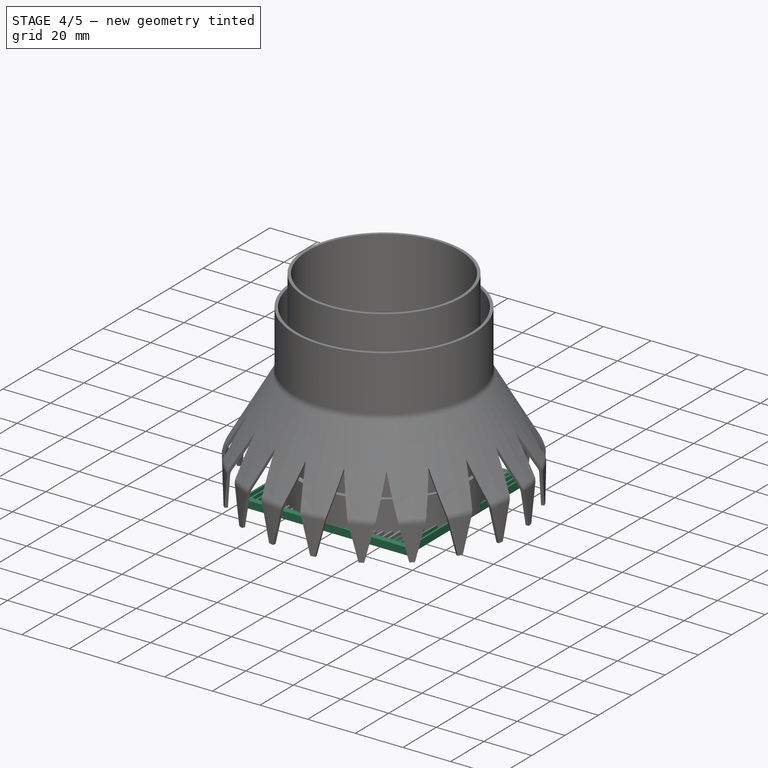
[diagram: stage 4 of 5 — iso view after this stage's code; geometry added in this stage tinted green]
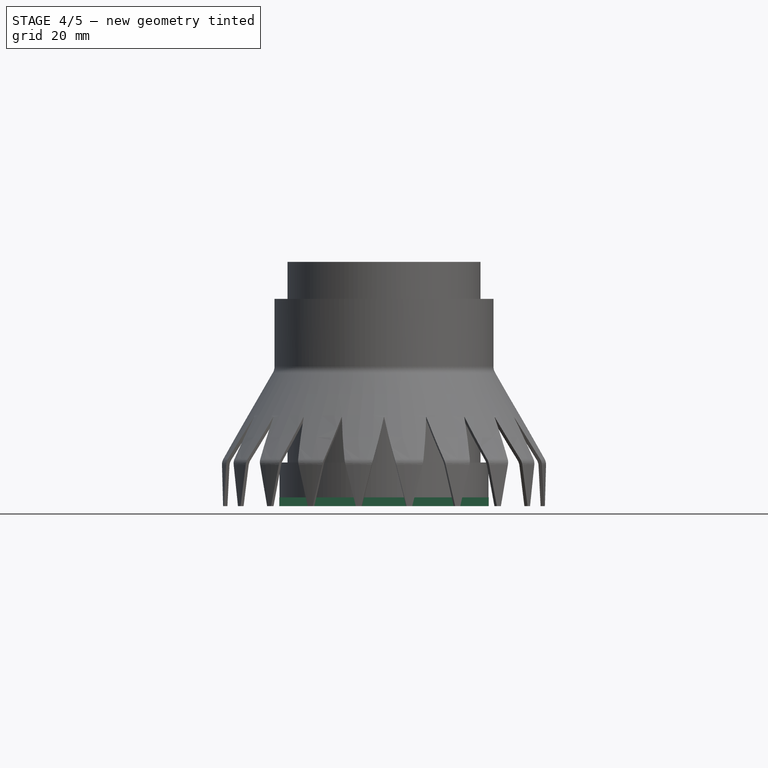
[diagram: stage 4 of 5 — front view after this stage's code; geometry added in this stage tinted green]
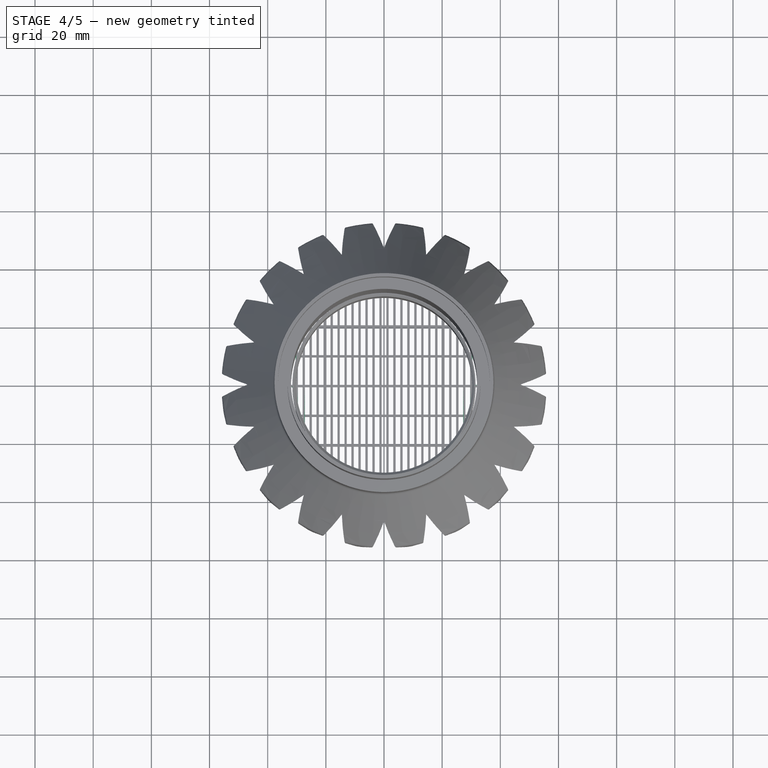
[diagram: stage 4 of 5 — top view after this stage's code; geometry added in this stage tinted green]
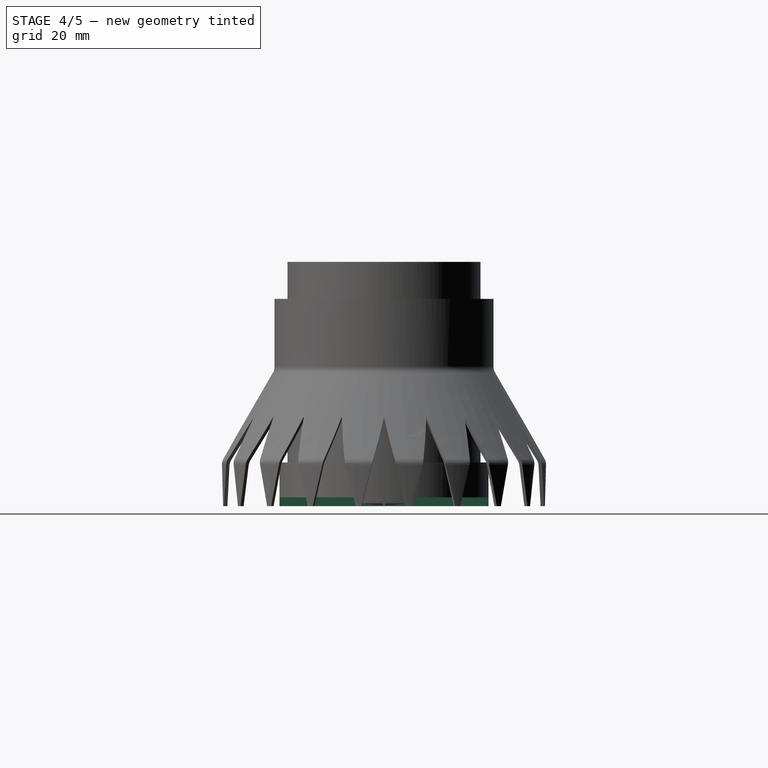
[diagram: stage 4 of 5 — right view after this stage's code; geometry added in this stage tinted green]
FEATURE [Sketcher::SketchObject] Sketch
  ArcFitTolerance = 1e-06
  AttachmentSupport = -> [XY_Plane012]
  FullyConstrained = true
  MakeInternals = false
  MapMode = 5
  expr: Constraints[10] = <<Spreadsheet>>.C_OuterDia
  sketch-geometry (4):
    g0: LineSegment StartX=-35.95 StartY=35.95 StartZ=0 EndX=-35.95 EndY=-35.95 EndZ=0
    g1: LineSegment StartX=-35.95 StartY=-35.95 StartZ=0 EndX=35.95 EndY=-35.95 EndZ=0
    g2: LineSegment StartX=35.95 StartY=-35.95 StartZ=0 EndX=35.95 EndY=35.95 EndZ=0
    g3: LineSegment StartX=35.95 StartY=35.95 StartZ=0 EndX=-35.95 EndY=35.95 EndZ=0
  constraints (11):
    c: Coincident(g0,g1)
    c: Coincident(g1,g2)
    c: Coincident(g2,g3)
    c: Coincident(g3,g0)
    c: Vertical(g0)
    c: Vertical(g2)
    c: Horizontal(g1)
    c: Horizontal(g3)
    c: Symmetric(g0,g2,g-1)
    c: Equal(g0,g3)
    c: DistanceX(g3,g3) = 71.9
FEATURE [PartDesign::Pad] Pad
  Direction = (0,0,1)
  Length = 3
  Length2 = 10
  Profile = -> Sketch
  ReferenceAxis = -> Sketch [N_Axis]
  Refine = true
  Suppressed = false
  Type = 0
  expr: Length = <<Spreadsheet>>.G_Height
FEATURE [Sketcher::SketchObject] Sketch044
  ArcFitTolerance = 1e-06
  AttachmentSupport = -> [XY_Plane012]
  FullyConstrained = true
  MakeInternals = false
  MapMode = 5
  expr: Constraints[10] = <<Spreadsheet>>.C_InnerDia + 0.1 mm
  expr: Constraints[9] = <<Spreadsheet>>.G_Gap
  sketch-geometry (4):
    g0: LineSegment StartX=-0.8 StartY=33.4 StartZ=0 EndX=-0.8 EndY=-33.4 EndZ=0
    g1: LineSegment StartX=-0.8 StartY=-33.4 StartZ=0 EndX=0.8 EndY=-33.4 EndZ=0
    g2: LineSegment StartX=0.8 StartY=-33.4 StartZ=0 EndX=0.8 EndY=33.4 EndZ=0
    g3: LineSegment StartX=0.8 StartY=33.4 StartZ=0 EndX=-0.8 EndY=33.4 EndZ=0
  constraints (11):
    c: Coincident(g0,g1)
    c: Coincident(g1,g2)
    c: Coincident(g2,g3)
    c: Coincident(g3,g0)
    c: Vertical(g0)
    c: Vertical(g2)
    c: Horizontal(g1)
    c: Horizontal(g3)
    c: Symmetric(g0,g2,g-1)
    c: DistanceX(g3,g3) = 1.6
    c: DistanceY(g0,g0) = 66.8
FEATURE [PartDesign::Pocket] Pocket
  BaseFeature = -> Pad
  Direction = (0,0,-1)
  Length = 5
  Length2 = 5
  Profile = -> Sketch044
  ReferenceAxis = -> Sketch044 [N_Axis]
  Refine = true
  Reversed = true
  Suppressed = false
  Type = 1
FEATURE [PartDesign::LinearPattern] LinearPattern004
  BaseFeature = -> Pocket
  Direction = -> Sketch044 [H_Axis]
  Length = 36
  Mode = 1
  Occurrences = 16
  Offset = 2.4
  Originals = -> [Pocket]
  Refine = true
  Suppressed = false
  TransformMode = 0
  expr: Occurrences = <<Spreadsheet>>.C_OuterDia / 2 / Offset + 1
  expr: Offset = <<Spreadsheet>>.G_Gap + <<Spreadsheet>>.G_Thickness
FEATURE [PartDesign::LinearPattern] LinearPattern005
  BaseFeature = -> LinearPattern004
  Direction = -> Sketch044 [H_Axis]
  Length = 36
  Mode = 1
  Occurrences = 16
  Offset = 2.4
  Originals = -> [Pocket]
  Refine = true
  Reversed = true
  Suppressed = false
  TransformMode = 0
  expr: Occurrences = <<Spreadsheet>>.C_OuterDia / 2 / Offset + 1
  expr: Offset = <<Spreadsheet>>.G_Gap + <<Spreadsheet>>.G_Thickness
FEATURE [Sketcher::SketchObject] Sketch045
  ArcFitTolerance = 1e-06
  AttachmentSupport = -> [XY_Plane012]
  FullyConstrained = true
  MakeInternals = false
  MapMode = 5
  expr: Constraints[10] = <<Spreadsheet>>.C_OuterDia + 0.1 mm
  expr: Constraints[9] = <<Spreadsheet>>.G_Thickness
  sketch-geometry (4):
    g0: LineSegment StartX=-36 StartY=0.4 StartZ=0 EndX=-36 EndY=-0.4 EndZ=0
    g1: LineSegment StartX=-36 StartY=-0.4 StartZ=0 EndX=36 EndY=-0.4 EndZ=0
    g2: LineSegment StartX=36 StartY=-0.4 StartZ=0 EndX=36 EndY=0.4 EndZ=0
    g3: LineSegment StartX=36 StartY=0.4 StartZ=0 EndX=-36 EndY=0.4 EndZ=0
  constraints (11):
    c: Coincident(g0,g1)
    c: Coincident(g1,g2)
    c: Coincident(g2,g3)
    c: Coincident(g3,g0)
    c: Vertical(g0)
    c: Vertical(g2)
    c: Horizontal(g1)
    c: Horizontal(g3)
    c: Symmetric(g0,g2,g-1)
    c: DistanceY(g0,g0) = 0.8
    c: DistanceX(g3,g3) = 72
FEATURE [PartDesign::Pad] Pad012
  BaseFeature = -> LinearPattern005
  Direction = (0,0,1)
  Length = 3
  Length2 = 10
  Profile = -> Sketch045
  ReferenceAxis = -> Sketch045 [N_Axis]
  Refine = true
  Suppressed = false
  Type = 0
  expr: Length = <<Pad>>.Length
FEATURE [Sketcher::SketchObject] Sketch050
  ArcFitTolerance = 1e-06
  AttachmentSupport = -> [XY_Plane013]
  FullyConstrained = true
  MakeInternals = false
  MapMode = 5
  expr: Constraints[2] = <<Spreadsheet>>.InnerDia
  expr: Constraints[3] = <<Spreadsheet>>.C_OuterDia
  sketch-geometry (2):
    g0: Circle CenterX=0 CenterY=0 CenterZ=0 NormalX=0 NormalY=0 NormalZ=1 AngleXU=0 Radius=35.95
    g1: Circle CenterX=0 CenterY=0 CenterZ=0 NormalX=0 NormalY=0 NormalZ=1 AngleXU=0 Radius=32
  constraints (4):
    c: Coincident(g0,g-1)
    c: Coincident(g1,g0)
    c: Diameter(g1) = 64
    c: Diameter(g0) = 71.9
FEATURE [PartDesign::Pad] Pad015
  BaseFeature = -> SubtractiveHelix
  Direction = (0,0,1)
  Length = 3
  Length2 = 10
  Profile = -> Sketch050
  ReferenceAxis = -> Sketch050 [N_Axis]
  Refine = true
  Suppressed = false
  Type = 0
  expr: Length = <<Spreadsheet>>.G_Height
FEATURE [PartDesign::Chamfer] Chamfer
  Angle = 45
  Base = -> Pad015 [Edge33]
  BaseFeature = -> Pad015
  ChamferType = 0
  FlipDirection = false
  Refine = true
  Size = 1
  Size2 = 1
  SupportTransform = false
  Suppressed = false
  UseAllEdges = false
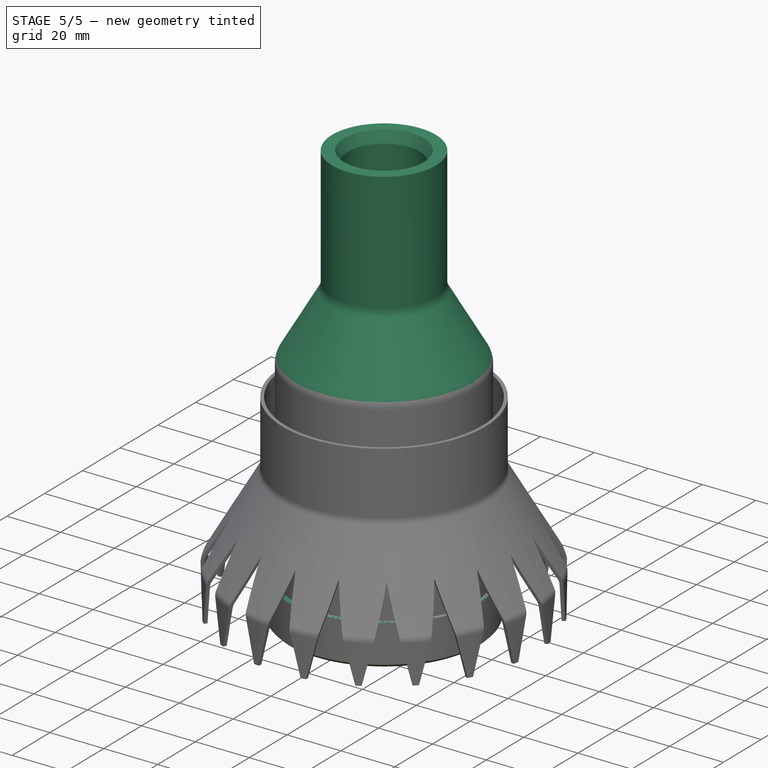
[diagram: stage 5 of 5 — iso view after this stage's code; geometry added in this stage tinted green]
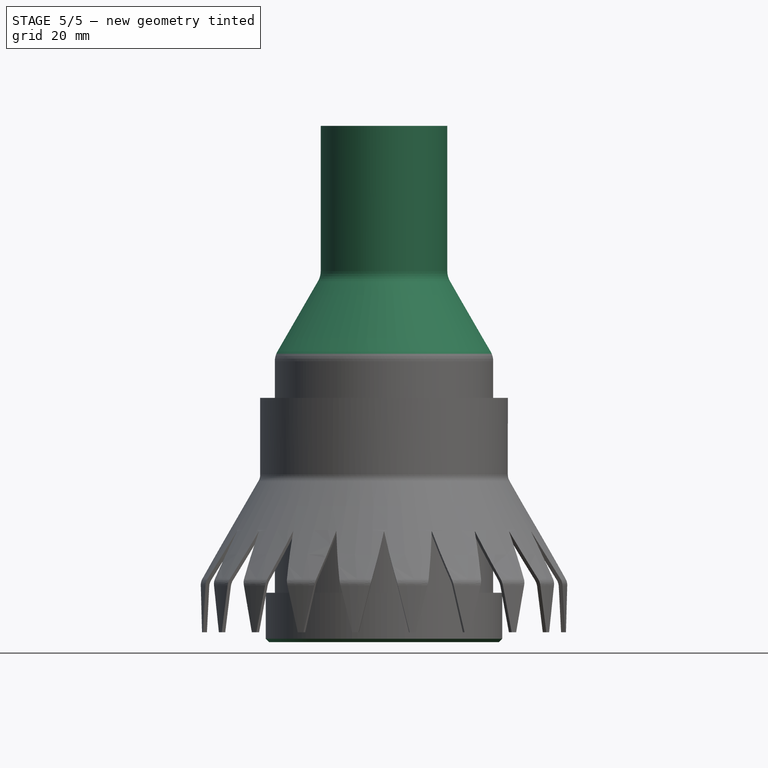
[diagram: stage 5 of 5 — front view after this stage's code; geometry added in this stage tinted green]
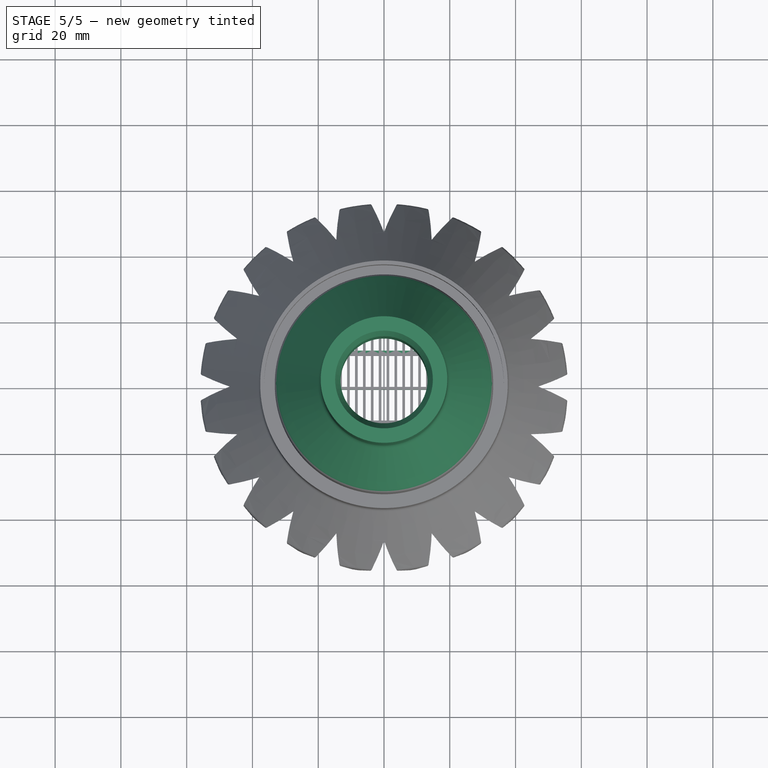
[diagram: stage 5 of 5 — top view after this stage's code; geometry added in this stage tinted green]
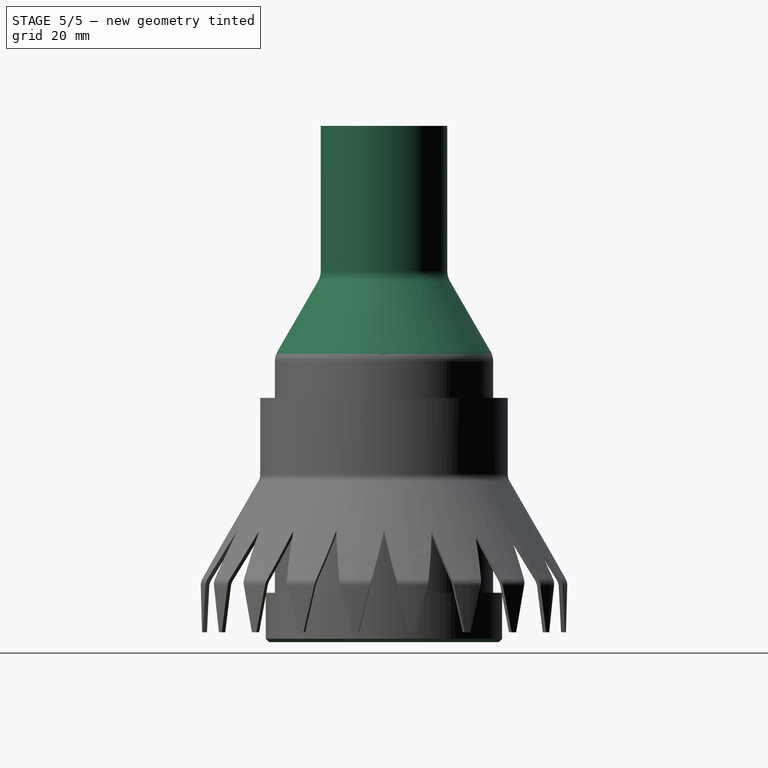
[diagram: stage 5 of 5 — right view after this stage's code; geometry added in this stage tinted green]
FEATURE [PartDesign::LinearPattern] LinearPattern006
  BaseFeature = -> Pad012
  Direction = -> Sketch045 [V_Axis]
  Length = 22.1
  Mode = 1
  Occurrences = 3
  Offset = 11.05
  Originals = -> [Pad012]
  Refine = true
  Suppressed = false
  TransformMode = 0
  expr: Occurrences = <<Spreadsheet>>.G_Dividers + 1
  expr: Offset = (<<Spreadsheet>>.C_InnerDia - <<Spreadsheet>>.G_Thickness / 2) / 2 / (<<Spreadsheet>>.G_Dividers + 1)
FEATURE [PartDesign::LinearPattern] LinearPattern007
  BaseFeature = -> LinearPattern006
  Direction = -> Sketch045 [V_Axis]
  Length = 22.1
  Mode = 1
  Occurrences = 3
  Offset = 11.05
  Originals = -> [Pad012]
  Refine = true
  Reversed = true
  Suppressed = false
  TransformMode = 0
  expr: Occurrences = <<Spreadsheet>>.G_Dividers + 1
  expr: Offset = (<<Spreadsheet>>.C_InnerDia - <<Spreadsheet>>.G_Thickness / 2) / 2 / (<<Spreadsheet>>.G_Dividers + 1)
FEATURE [Sketcher::SketchObject] Sketch046
  ArcFitTolerance = 1e-06
  AttachmentSupport = -> [XY_Plane012]
  FullyConstrained = true
  MakeInternals = false
  MapMode = 5
  expr: Constraints[12] = <<Spreadsheet>>.C_OuterDia + 0.2 mm
  expr: Constraints[1] = <<Spreadsheet>>.InnerDia + 0.1 mm
  sketch-geometry (5):
    g0: Circle CenterX=0 CenterY=0 CenterZ=0 NormalX=0 NormalY=0 NormalZ=1 AngleXU=0 Radius=32.05
    g1: LineSegment StartX=-36.05 StartY=36.05 StartZ=0 EndX=-36.05 EndY=-36.05 EndZ=0
    g2: LineSegment StartX=-36.05 StartY=-36.05 StartZ=0 EndX=36.05 EndY=-36.05 EndZ=0
    g3: LineSegment StartX=36.05 StartY=-36.05 StartZ=0 EndX=36.05 EndY=36.05 EndZ=0
    g4: LineSegment StartX=36.05 StartY=36.05 StartZ=0 EndX=-36.05 EndY=36.05 EndZ=0
  constraints (13):
    c: Coincident(g0,g-1)
    c: Diameter(g0) = 64.1
    c: Coincident(g1,g2)
    c: Coincident(g2,g3)
    c: Coincident(g3,g4)
    c: Coincident(g4,g1)
    c: Vertical(g1)
    c: Vertical(g3)
    c: Horizontal(g2)
    c: Horizontal(g4)
    c: Equal(g4,g1)
    c: Symmetric(g1,g3,g0)
    c: DistanceX(g4,g4) = 72.1
FEATURE [PartDesign::Pocket] Pocket004
  BaseFeature = -> LinearPattern007
  Direction = (0,0,-1)
  Length = 5
  Length2 = 5
  Profile = -> Sketch046
  ReferenceAxis = -> Sketch046 [N_Axis]
  Refine = true
  Reversed = true
  Suppressed = false
  Type = 0
FEATURE [PartDesign::Body] Body008  label="CapThread"
  AllowCompound = false
  Group = -> [Sketch048,Pad014,Sketch049,SubtractiveHelix,Sketch050,Pad015,Chamfer]
  Origin = -> Origin013
  Tip = -> Chamfer
FEATURE [Part::MultiFuse] Fusion  label="Cap"
  Placement = pos=(0,0,-3) rot=(0,0,1;0rad)
  Refine = true
  Shapes = -> [Body008,Body]
  expr: .Placement.Base.z = -<<Spreadsheet>>.G_Height
FEATURE [PartDesign::Revolution] Revolution001
  Angle = 360
  Angle2 = 60
  Axis = (0,2e-16,1)
  Base = (0,0,0)
  BaseFeature = -> Pocket005
  Profile = -> Sketch042
  ReferenceAxis = -> Sketch042 [V_Axis]
  Refine = true
  Suppressed = false
  Type = 0
FEATURE [PartDesign::Chamfer] Chamfer007
  Angle = 45
  Base = -> Revolution001 [Edge7]
  BaseFeature = -> Revolution001
  ChamferType = 1
  FlipDirection = false
  Refine = true
  Size = 4
  Size2 = 1.6
  SupportTransform = false
  Suppressed = false
  UseAllEdges = false
FEATURE [PartDesign::Fillet] Fillet005
  Base = -> Chamfer007 [Face8,Face3]
  BaseFeature = -> Chamfer007
  Radius = 6
  Refine = true
  SupportTransform = false
  Suppressed = false
  UseAllEdges = false
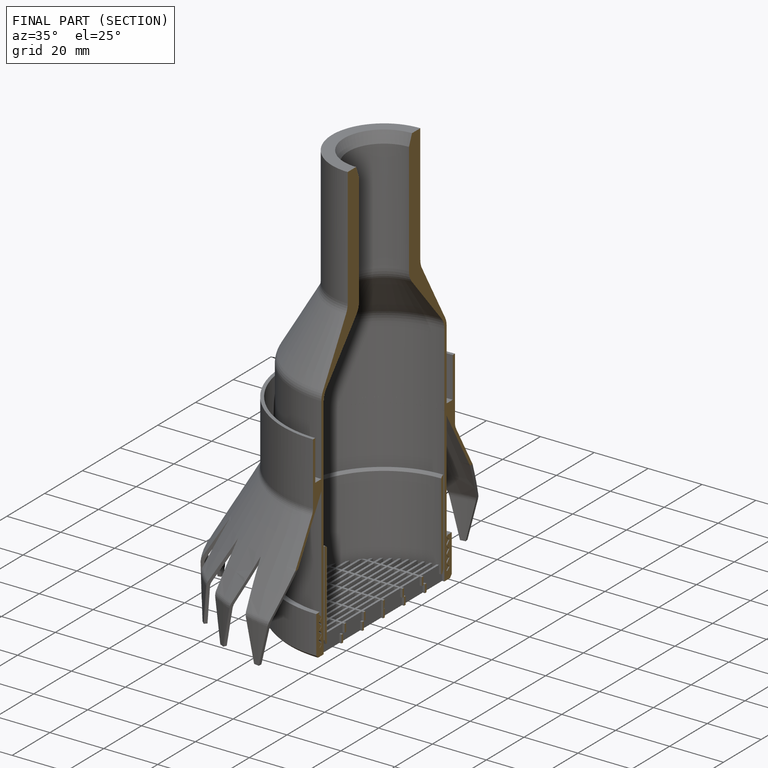
[diagram: finished part — half-section view (interior)]
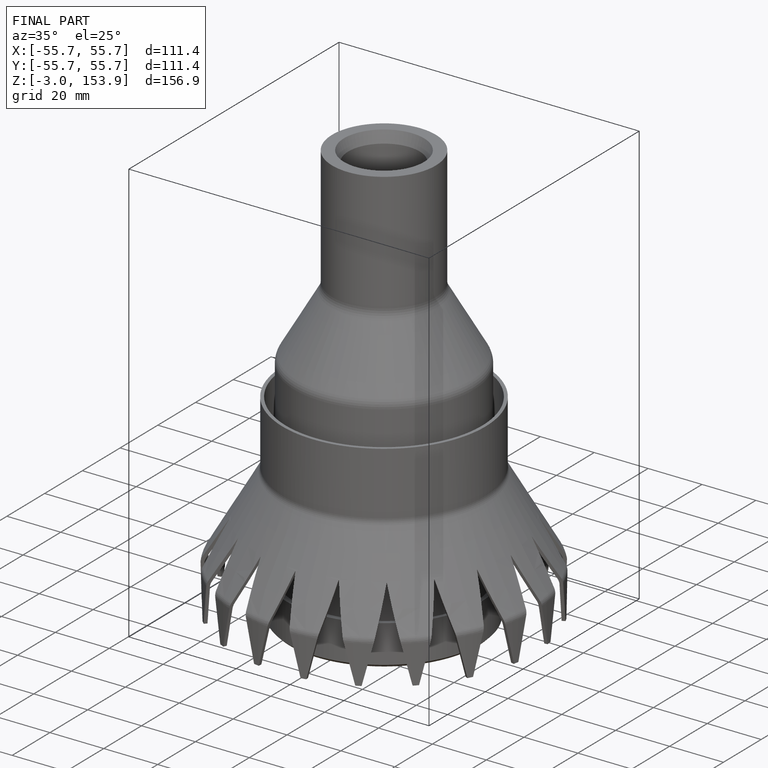
[diagram: finished part — iso view with bounding-box wireframe]
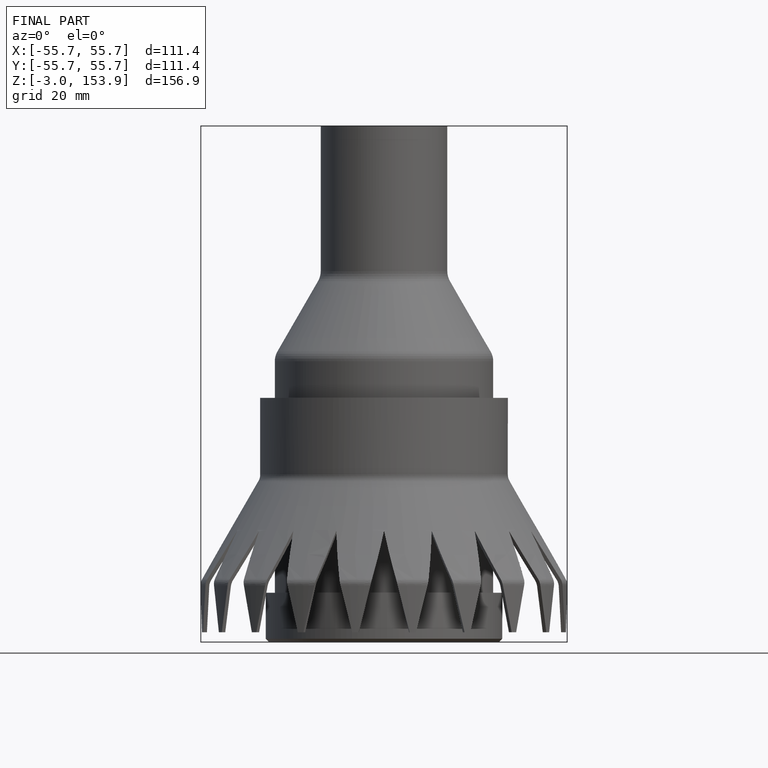
[diagram: finished part — front view with bounding-box wireframe]
